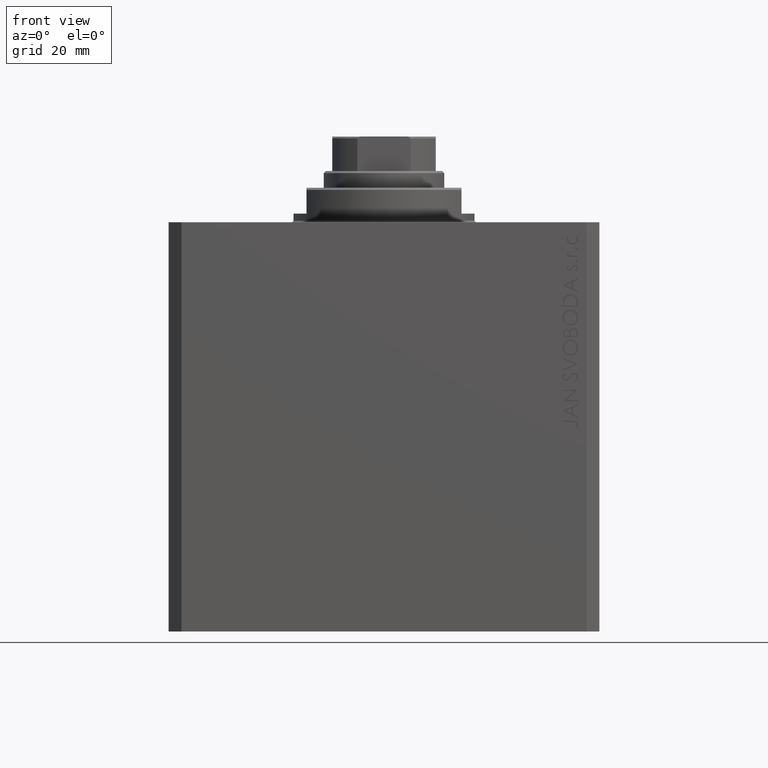
[diagram: clean part render]
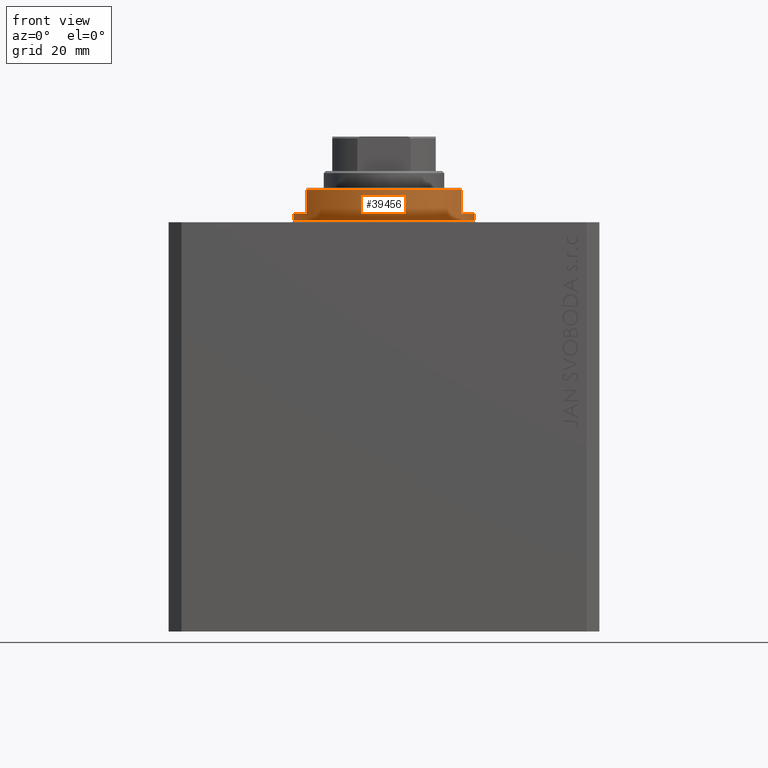
[diagram: same view with one face highlighted and labeled with its STEP entity id]
A machine part, front view. The second image highlights one B-rep face of the part: STEP entity #39456.
In plain terms, the highlighted cylindrical surface (partial cylindrical patch) has radius 21 mm, axis along (0, 0, -1).
Its self-contained STEP definition (entity closure, byte-faithful):
#82 = VERTEX_POINT ( 'NONE', #12713 ) ;
#1340 = DIRECTION ( 'NONE',  ( 1.000000000000000000, 0.000000000000000000, 0.000000000000000000 ) ) ;
#1500 = DIRECTION ( 'NONE',  ( 0.000000000000000000, 0.000000000000000000, -1.000000000000000000 ) ) ;
#1685 = CIRCLE ( 'NONE', #3837, 21.00000000000000000 ) ;
#1969 = VERTEX_POINT ( 'NONE', #9851 ) ;
#2384 = CARTESIAN_POINT ( 'NONE',  ( -21.00000000000000000, 2.571758278209441661E-15, -8.000000000000000000 ) ) ;
#3345 = EDGE_CURVE ( 'NONE', #12373, #30328, #28877, .T. ) ;
#3837 = AXIS2_PLACEMENT_3D ( 'NONE', #26957, #40882, #23805 ) ;
#4029 = DIRECTION ( 'NONE',  ( -0.000000000000000000, -0.000000000000000000, 1.000000000000000000 ) ) ;
#4437 = EDGE_CURVE ( 'NONE', #18609, #20165, #12434, .T. ) ;
#4533 = EDGE_LOOP ( 'NONE', ( #10145, #28120, #35729, #5407, #41319, #11486, #15291, #13567 ) ) ;
#4636 = CIRCLE ( 'NONE', #34779, 21.00000000000000000 ) ;
#5407 = ORIENTED_EDGE ( 'NONE', *, *, #39011, .T. ) ;
#7849 = CARTESIAN_POINT ( 'NONE',  ( 21.00000000000000000, 0.000000000000000000, -8.000000000000000000 ) ) ;
#7976 = CARTESIAN_POINT ( 'NONE',  ( 18.00000000000000000, -10.81665382639197048, -8.000000000000000000 ) ) ;
#9233 = VERTEX_POINT ( 'NONE', #12380 ) ;
#9326 = AXIS2_PLACEMENT_3D ( 'NONE', #14314, #1500, #41748 ) ;
#9610 = CARTESIAN_POINT ( 'NONE',  ( 18.00000000000000000, -10.81665382639197048, -2.000000000000000000 ) ) ;
#9776 = VECTOR ( 'NONE', #39862, 1000.000000000000000 ) ;
#9851 = CARTESIAN_POINT ( 'NONE',  ( -21.00000000000000000, 2.571758278209441661E-15, -0.5000000000000004441 ) ) ;
#10145 = ORIENTED_EDGE ( 'NONE', *, *, #28656, .F. ) ;
#10794 = DIRECTION ( 'NONE',  ( -0.000000000000000000, -0.000000000000000000, 1.000000000000000000 ) ) ;
#11486 = ORIENTED_EDGE ( 'NONE', *, *, #35539, .F. ) ;
#11600 = VECTOR ( 'NONE', #26002, 1000.000000000000000 ) ;
#12373 = VERTEX_POINT ( 'NONE', #9610 ) ;
#12380 = CARTESIAN_POINT ( 'NONE',  ( 21.00000000000000000, 0.000000000000000000, -2.000000000000000000 ) ) ;
#12434 = LINE ( 'NONE', #26604, #9776 ) ;
#12713 = CARTESIAN_POINT ( 'NONE',  ( -21.00000000000000000, 2.571758278209441661E-15, -2.000000000000000000 ) ) ;
#13002 = CARTESIAN_POINT ( 'NONE',  ( -18.00000000000000000, -10.81665382639197048, -7.499999999999990230 ) ) ;
#13026 = EDGE_CURVE ( 'NONE', #9233, #33541, #18402, .T. ) ;
#13567 = ORIENTED_EDGE ( 'NONE', *, *, #30746, .T. ) ;
#14314 = CARTESIAN_POINT ( 'NONE',  ( 0.000000000000000000, 0.000000000000000000, -2.000000000000000000 ) ) ;
#14316 = CARTESIAN_POINT ( 'NONE',  ( 0.000000000000000000, 0.000000000000000000, -7.499999999999989342 ) ) ;
#14677 = AXIS2_PLACEMENT_3D ( 'NONE', #31707, #10794, #1340 ) ;
#15291 = ORIENTED_EDGE ( 'NONE', *, *, #13026, .T. ) ;
#15553 = AXIS2_PLACEMENT_3D ( 'NONE', #25669, #29040, #19140 ) ;
#18017 = CARTESIAN_POINT ( 'NONE',  ( 21.00000000000000000, 0.000000000000000000, -0.5000000000000004441 ) ) ;
#18402 = LINE ( 'NONE', #7849, #22139 ) ;
#18412 = FACE_OUTER_BOUND ( 'NONE', #4533, .T. ) ;
#18609 = VERTEX_POINT ( 'NONE', #35875 ) ;
#19140 = DIRECTION ( 'NONE',  ( -1.000000000000000000, 0.000000000000000000, 0.000000000000000000 ) ) ;
#19142 = CIRCLE ( 'NONE', #15553, 21.00000000000000000 ) ;
#19328 = EDGE_CURVE ( 'NONE', #18609, #82, #28708, .T. ) ;
#20165 = VERTEX_POINT ( 'NONE', #13002 ) ;
#22139 = VECTOR ( 'NONE', #4029, 1000.000000000000000 ) ;
#23805 = DIRECTION ( 'NONE',  ( 1.000000000000000000, 0.000000000000000000, 0.000000000000000000 ) ) ;
#25296 = CARTESIAN_POINT ( 'NONE',  ( 18.00000000000000000, -10.81665382639197048, -7.499999999999989342 ) ) ;
#25669 = CARTESIAN_POINT ( 'NONE',  ( 0.000000000000000000, 0.000000000000000000, -2.000000000000000000 ) ) ;
#26002 = DIRECTION ( 'NONE',  ( -0.000000000000000000, -0.000000000000000000, 1.000000000000000000 ) ) ;
#26604 = CARTESIAN_POINT ( 'NONE',  ( -18.00000000000000000, -10.81665382639197048, -8.000000000000000000 ) ) ;
#26957 = CARTESIAN_POINT ( 'NONE',  ( 0.000000000000000000, 0.000000000000000000, -0.5000000000000004441 ) ) ;
#28038 = DIRECTION ( 'NONE',  ( -1.000000000000000000, 0.000000000000000000, 0.000000000000000000 ) ) ;
#28120 = ORIENTED_EDGE ( 'NONE', *, *, #19328, .F. ) ;
#28486 = DIRECTION ( 'NONE',  ( 0.000000000000000000, 0.000000000000000000, 1.000000000000000000 ) ) ;
#28656 = EDGE_CURVE ( 'NONE', #82, #1969, #28923, .T. ) ;
#28708 = CIRCLE ( 'NONE', #9326, 21.00000000000000000 ) ;
#28877 = LINE ( 'NONE', #7976, #42797 ) ;
#28923 = LINE ( 'NONE', #2384, #11600 ) ;
#29040 = DIRECTION ( 'NONE',  ( 0.000000000000000000, 0.000000000000000000, -1.000000000000000000 ) ) ;
#30328 = VERTEX_POINT ( 'NONE', #25296 ) ;
#30746 = EDGE_CURVE ( 'NONE', #33541, #1969, #1685, .T. ) ;
#31707 = CARTESIAN_POINT ( 'NONE',  ( 0.000000000000000000, 0.000000000000000000, -8.000000000000000000 ) ) ;
#31918 = CYLINDRICAL_SURFACE ( 'NONE', #14677, 21.00000000000000000 ) ;
#33541 = VERTEX_POINT ( 'NONE', #18017 ) ;
#34779 = AXIS2_PLACEMENT_3D ( 'NONE', #14316, #28486, #28038 ) ;
#35539 = EDGE_CURVE ( 'NONE', #9233, #12373, #19142, .T. ) ;
#35729 = ORIENTED_EDGE ( 'NONE', *, *, #4437, .T. ) ;
#35875 = CARTESIAN_POINT ( 'NONE',  ( -18.00000000000000000, -10.81665382639197048, -2.000000000000000000 ) ) ;
#39011 = EDGE_CURVE ( 'NONE', #20165, #30328, #4636, .T. ) ;
#39456 = ADVANCED_FACE ( 'NONE', ( #18412 ), #31918, .T. ) ;
#39862 = DIRECTION ( 'NONE',  ( 0.000000000000000000, 0.000000000000000000, -1.000000000000000000 ) ) ;
#40882 = DIRECTION ( 'NONE',  ( -0.000000000000000000, -0.000000000000000000, -1.000000000000000000 ) ) ;
#41319 = ORIENTED_EDGE ( 'NONE', *, *, #3345, .F. ) ;
#41748 = DIRECTION ( 'NONE',  ( -1.000000000000000000, 0.000000000000000000, 0.000000000000000000 ) ) ;
#42797 = VECTOR ( 'NONE', #42806, 1000.000000000000000 ) ;
#42806 = DIRECTION ( 'NONE',  ( 0.000000000000000000, 0.000000000000000000, -1.000000000000000000 ) ) ;